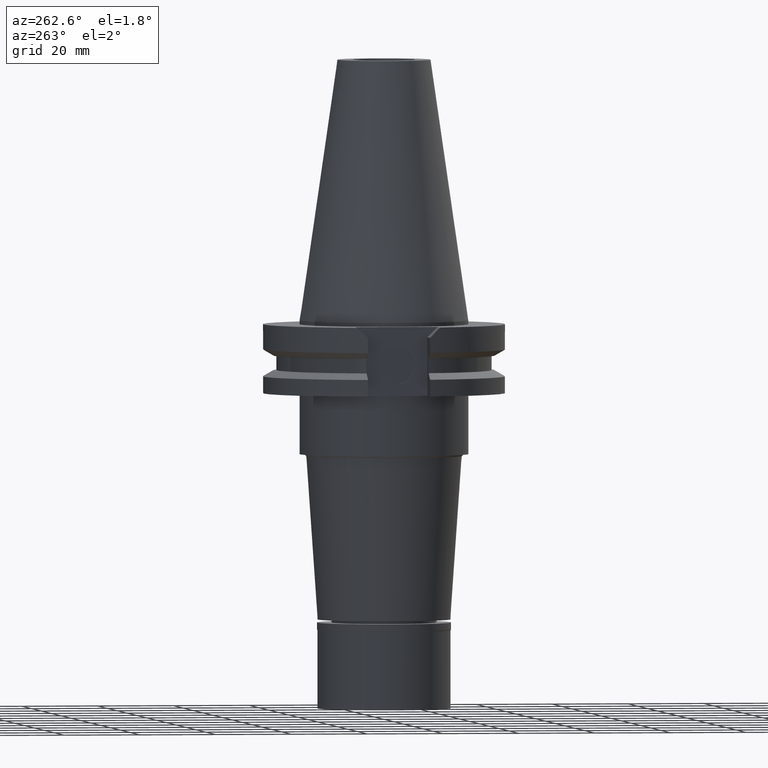
[diagram: clean part render]
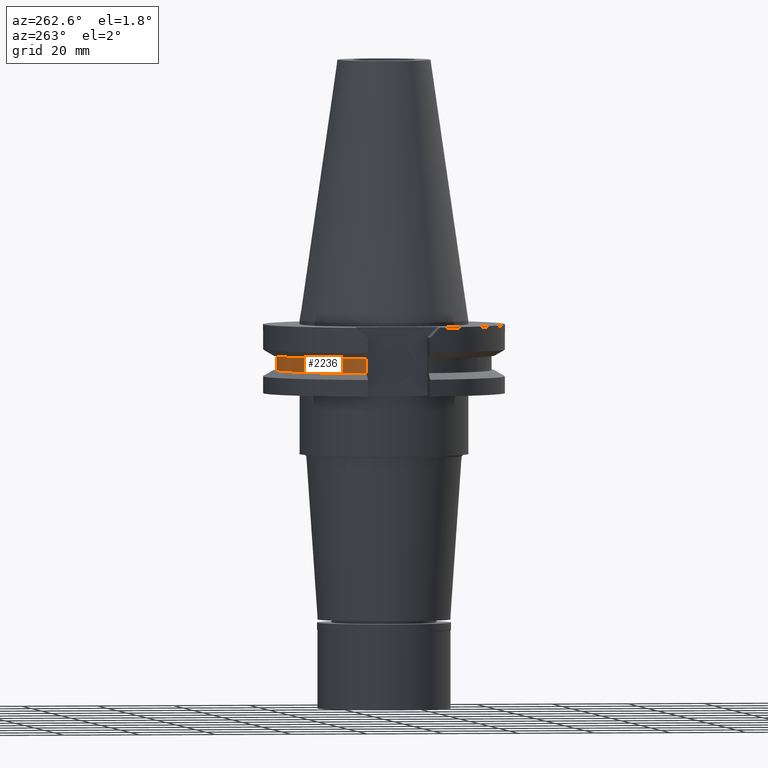
[diagram: same view with one face highlighted and labeled with its STEP entity id]
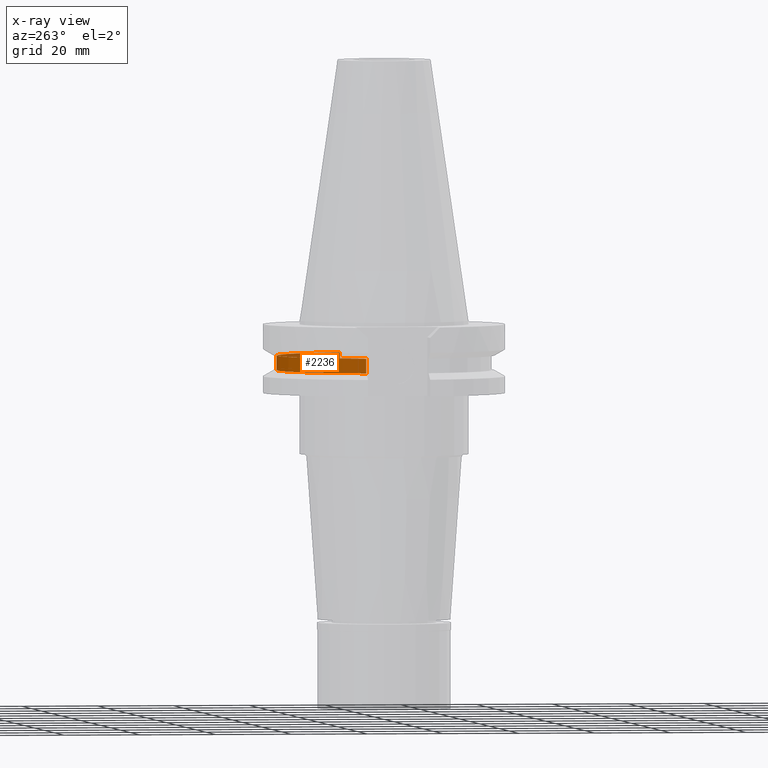
[diagram: x-ray of the same camera — body ghosted, the highlighted face saturated]
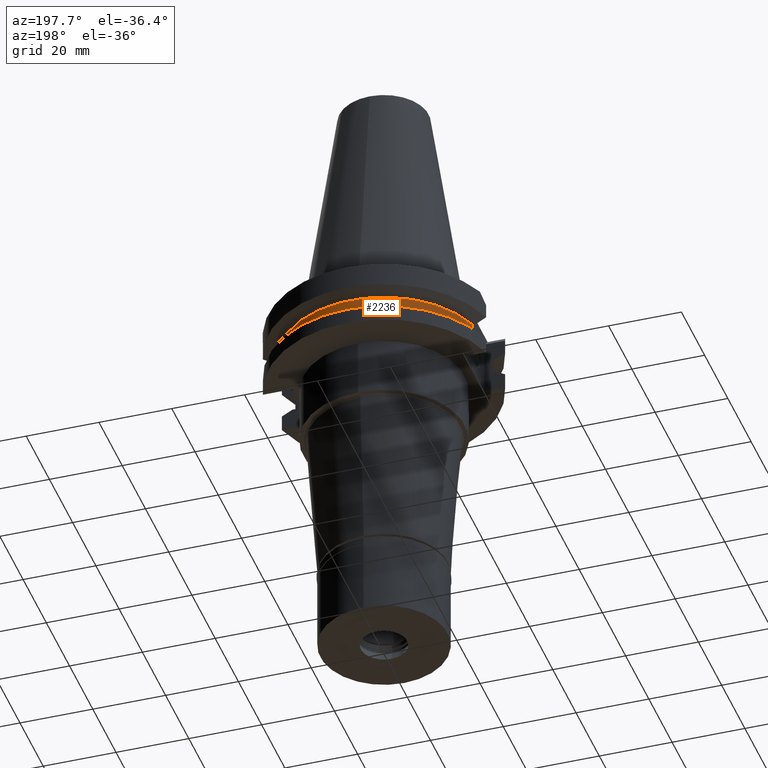
[diagram: same view with one face highlighted and labeled with its STEP entity id]
A machine part, auxiliary view. The second image highlights one B-rep face of the part: STEP entity #2236.
The next image is the same camera in x-ray: the body ghosted, the highlighted face saturated — about 17% of this face is hidden behind the body in this view.
A second angle (auxiliary view) of the same face is appended — the face is thin or edge-on in the first view.
In plain terms, the highlighted cylindrical surface (partial cylindrical patch) has radius 28.18 mm, axis along (0, 0, -1).
Its self-contained STEP definition (entity closure, byte-faithful):
#133 = AXIS2_PLACEMENT_3D ( 'NONE', #1431, #3315, #3281 ) ;
#167 = EDGE_CURVE ( 'NONE', #2319, #847, #2283, .T. ) ;
#575 = VECTOR ( 'NONE', #2237, 1000.000000000000000 ) ;
#605 = CARTESIAN_POINT ( 'NONE',  ( -26.96361066326000255, 8.189999999999999503, -9.209999999999999076 ) ) ;
#813 = DIRECTION ( 'NONE',  ( 0.0000000000000000000, 0.0000000000000000000, -1.000000000000000000 ) ) ;
#838 = ORIENTED_EDGE ( 'NONE', *, *, #1050, .T. ) ;
#847 = VERTEX_POINT ( 'NONE', #2867 ) ;
#851 = CIRCLE ( 'NONE', #3193, 28.17999999999999616 ) ;
#882 = EDGE_LOOP ( 'NONE', ( #1038, #838, #2617, #1157 ) ) ;
#918 = VERTEX_POINT ( 'NONE', #3077 ) ;
#930 = FACE_OUTER_BOUND ( 'NONE', #882, .T. ) ;
#1038 = ORIENTED_EDGE ( 'NONE', *, *, #167, .F. ) ;
#1050 = EDGE_CURVE ( 'NONE', #2319, #918, #1640, .T. ) ;
#1108 = DIRECTION ( 'NONE',  ( 0.0000000000000000000, 0.0000000000000000000, -1.000000000000000000 ) ) ;
#1157 = ORIENTED_EDGE ( 'NONE', *, *, #3224, .T. ) ;
#1379 = CARTESIAN_POINT ( 'NONE',  ( 0.0000000000000000000, 2.160368802205999604E-14, -9.209999999999999076 ) ) ;
#1431 = CARTESIAN_POINT ( 'NONE',  ( 0.0000000000000000000, 2.160368802205999604E-14, -13.05000000000000071 ) ) ;
#1640 = CIRCLE ( 'NONE', #133, 28.17999999999999972 ) ;
#1673 = DIRECTION ( 'NONE',  ( -0.9568350128907829877, 0.2906316536550950236, 0.0000000000000000000 ) ) ;
#1950 = VERTEX_POINT ( 'NONE', #2648 ) ;
#2006 = EDGE_CURVE ( 'NONE', #1950, #918, #3149, .T. ) ;
#2236 = ADVANCED_FACE ( 'NONE', ( #930 ), #3043, .T. ) ;
#2237 = DIRECTION ( 'NONE',  ( 0.0000000000000000000, 0.0000000000000000000, 1.000000000000000000 ) ) ;
#2283 = LINE ( 'NONE', #2800, #575 ) ;
#2319 = VERTEX_POINT ( 'NONE', #2746 ) ;
#2517 = VECTOR ( 'NONE', #813, 1000.000000000000000 ) ;
#2522 = DIRECTION ( 'NONE',  ( 0.0000000000000000000, -1.000000000000000000, 0.0000000000000000000 ) ) ;
#2617 = ORIENTED_EDGE ( 'NONE', *, *, #2006, .F. ) ;
#2648 = CARTESIAN_POINT ( 'NONE',  ( -26.96361066326000255, 8.189999999999999503, -9.209999999999999076 ) ) ;
#2746 = CARTESIAN_POINT ( 'NONE',  ( 26.96361066326000255, 8.189999999999999503, -13.05000000000000071 ) ) ;
#2800 = CARTESIAN_POINT ( 'NONE',  ( 26.96361066326000255, 8.189999999999999503, -13.05000000000000071 ) ) ;
#2867 = CARTESIAN_POINT ( 'NONE',  ( 26.96361066326000255, 8.189999999999999503, -9.209999999999999076 ) ) ;
#3043 = CYLINDRICAL_SURFACE ( 'NONE', #3066, 28.17999999999999972 ) ;
#3053 = DIRECTION ( 'NONE',  ( 0.0000000000000000000, 0.0000000000000000000, -1.000000000000000000 ) ) ;
#3066 = AXIS2_PLACEMENT_3D ( 'NONE', #3308, #3053, #2522 ) ;
#3077 = CARTESIAN_POINT ( 'NONE',  ( -26.96361066326000255, 8.189999999999999503, -13.05000000000000071 ) ) ;
#3149 = LINE ( 'NONE', #605, #2517 ) ;
#3193 = AXIS2_PLACEMENT_3D ( 'NONE', #1379, #1108, #1673 ) ;
#3224 = EDGE_CURVE ( 'NONE', #1950, #847, #851, .T. ) ;
#3281 = DIRECTION ( 'NONE',  ( 0.0000000000000000000, 1.000000000000000000, 0.0000000000000000000 ) ) ;
#3308 = CARTESIAN_POINT ( 'NONE',  ( 0.0000000000000000000, 2.160368802205999604E-14, 76.40749999999999886 ) ) ;
#3315 = DIRECTION ( 'NONE',  ( 0.0000000000000000000, 0.0000000000000000000, 1.000000000000000000 ) ) ;